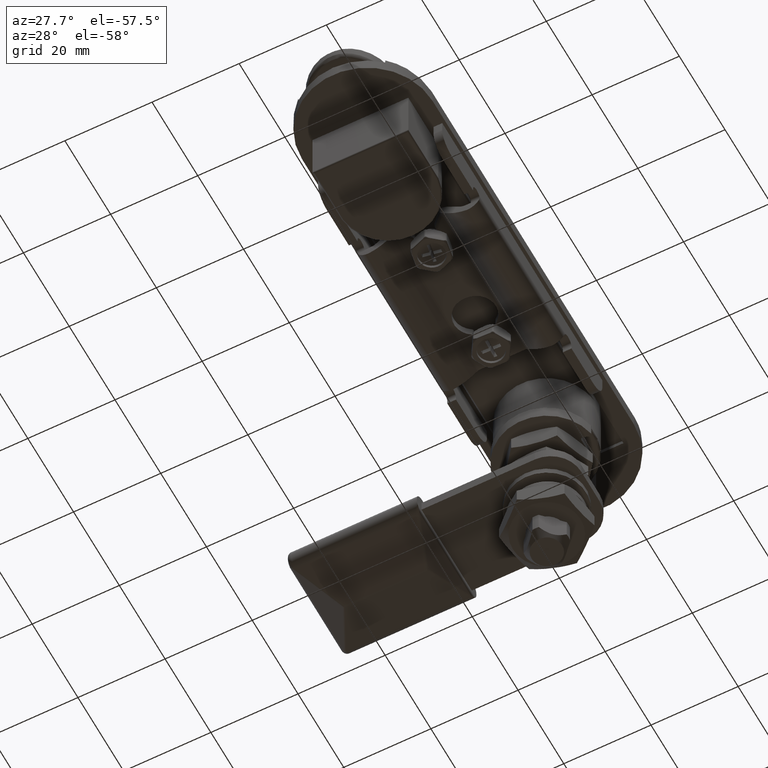
[diagram: clean part render]
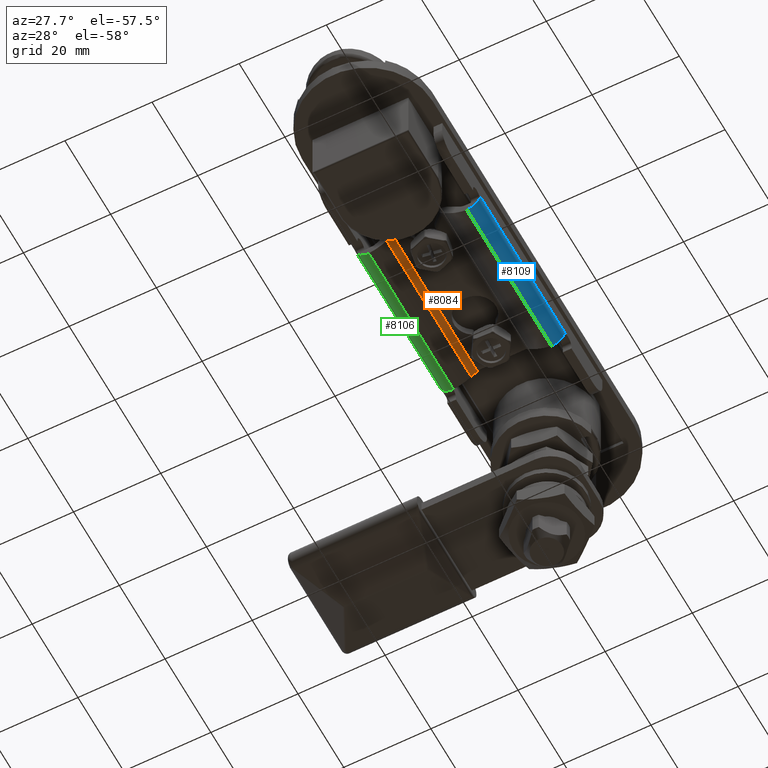
[diagram: same view with three faces highlighted in distinct colors, each labeled with its STEP entity id]
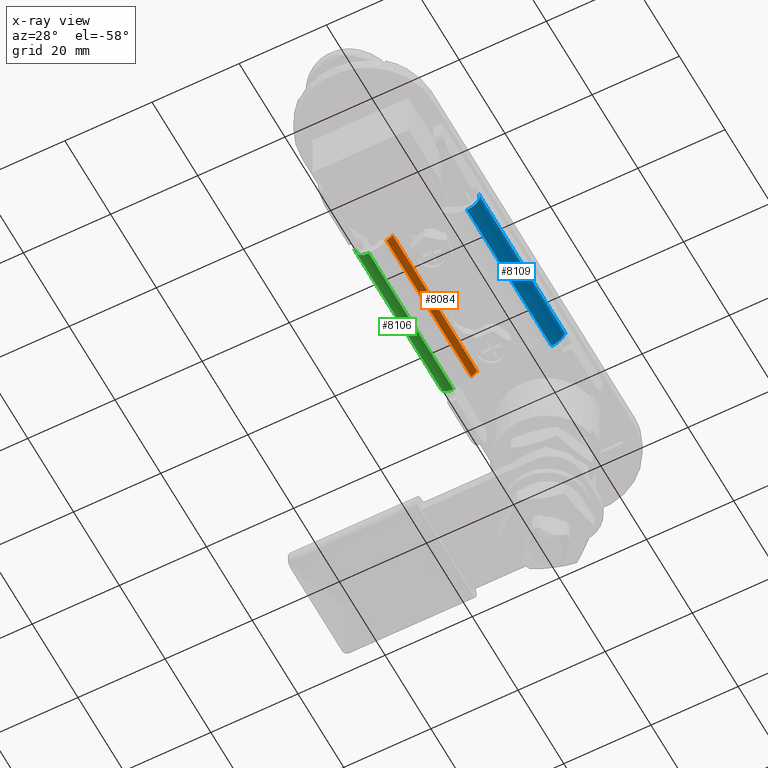
[diagram: x-ray of the same camera — body ghosted, the three highlighted faces saturated]
A machine part, auxiliary view with three faces highlighted in distinct colors.
The next image is the same camera in x-ray (body ghosted, the three faces saturated) — at least one of them is partly hidden behind the body in this view.
Their STEP definitions:

[orange] entity #8084 — the highlighted planar face has unit normal (0.6048, -0, -0.7963).
#307=B_SPLINE_CURVE_WITH_KNOTS('',3,(#13740,#13741,#13742,#13743,#13744,
#13745),.UNSPECIFIED.,.F.,.F.,(4,2,4),(0.0525554186925836,0.0561571522598591,
0.0569356578501314),.UNSPECIFIED.);
#783=LINE('',#13781,#1375);
#784=LINE('',#13785,#1376);
#785=LINE('',#13787,#1377);
#786=LINE('',#13788,#1378);
#1375=VECTOR('',#10557,36.9587656626786);
#1376=VECTOR('',#10562,1.75235138717755);
#1377=VECTOR('',#10563,37.);
#1378=VECTOR('',#10564,1.76574116136651);
#1728=PLANE('',#8823);
#2163=FACE_OUTER_BOUND('',#2691,.T.);
#2691=EDGE_LOOP('',(#6578,#6579,#6580,#6581,#6582));
#3783=VERTEX_POINT('',#13738);
#3784=VERTEX_POINT('',#13739);
#3790=VERTEX_POINT('',#13780);
#3791=VERTEX_POINT('',#13784);
#3792=VERTEX_POINT('',#13786);
#4768=EDGE_CURVE('',#3783,#3784,#307,.T.);
#4778=EDGE_CURVE('',#3784,#3790,#783,.T.);
#4780=EDGE_CURVE('',#3791,#3783,#784,.T.);
#4781=EDGE_CURVE('',#3792,#3791,#785,.T.);
#4782=EDGE_CURVE('',#3790,#3792,#786,.T.);
#6578=ORIENTED_EDGE('',*,*,#4768,.F.);
#6579=ORIENTED_EDGE('',*,*,#4780,.F.);
#6580=ORIENTED_EDGE('',*,*,#4781,.F.);
#6581=ORIENTED_EDGE('',*,*,#4782,.F.);
#6582=ORIENTED_EDGE('',*,*,#4778,.F.);
#8084=ADVANCED_FACE('',(#2163),#1728,.T.);
#8823=AXIS2_PLACEMENT_3D('',#13783,#10560,#10561);
#10557=DIRECTION('',(-1.,0.,0.));
#10560=DIRECTION('center_axis',(0.,-0.604843665026195,0.796344235163211));
#10561=DIRECTION('ref_axis',(0.,-0.796344235163211,-0.604843665026195));
#10562=DIRECTION('',(0.,-0.796344235163211,-0.604843665026195));
#10563=DIRECTION('',(1.,8.04644149250321E-17,6.11147660502249E-17));
#10564=DIRECTION('',(0.,0.796344235163211,0.604843665026195));
#13738=CARTESIAN_POINT('',(18.5,5.77879842857831,6.21175448493112));
#13739=CARTESIAN_POINT('',(18.4587656626786,5.76813555932597,6.2036557650139));
#13740=CARTESIAN_POINT('Ctrl Pts',(18.5,5.77879842857831,6.21175448493112));
#13741=CARTESIAN_POINT('Ctrl Pts',(18.4886562420649,5.77584627307822,6.20951224787639));
#13742=CARTESIAN_POINT('Ctrl Pts',(18.4773459949616,5.77291875636018,6.20728872460219));
#13743=CARTESIAN_POINT('Ctrl Pts',(18.4636388203637,5.76938856607966,6.20460745545597));
#13744=CARTESIAN_POINT('Ctrl Pts',(18.4612023544872,5.76876175481156,6.2041313763837));
#13745=CARTESIAN_POINT('Ctrl Pts',(18.4587656617459,5.76813555909279,6.20365576483679));
#13780=CARTESIAN_POINT('',(-18.5,5.76813555909279,6.20365576483679));
#13781=CARTESIAN_POINT('',(0.,5.76813555909279,6.20365576483679));
#13783=CARTESIAN_POINT('Origin',(0.,9.44983504602989,9.));
#13784=CARTESIAN_POINT('',(18.5,7.17427335373741,7.27165312036533));
#13785=CARTESIAN_POINT('',(18.5,5.5,6.));
#13786=CARTESIAN_POINT('',(-18.5,7.17427335373741,7.27165312036532));
#13787=CARTESIAN_POINT('',(-17.5,7.17427335373741,7.27165312036532));
#13788=CARTESIAN_POINT('',(-18.5,5.5,6.));

[blue] entity #8109 — the highlighted cylindrical surface (edge-blend (fillet) strip) has radius 3 mm, axis along (0, 1, 0).
#316=B_SPLINE_CURVE_WITH_KNOTS('',3,(#13947,#13948,#13949,#13950,#13951,
#13952,#13953,#13954),.UNSPECIFIED.,.F.,.F.,(4,2,2,4),(-0.229739998297129,
-0.171719825987874,-0.113699653678619,-0.0922557496648515),
 .UNSPECIFIED.);
#317=B_SPLINE_CURVE_WITH_KNOTS('',3,(#13957,#13958,#13959,#13960,#13961,
#13962,#13963,#13964),.UNSPECIFIED.,.F.,.F.,(4,2,2,4),(0.0922557496648514,
0.113699653678618,0.171719825987873,0.229739998297129),.UNSPECIFIED.);
#814=LINE('',#13879,#1406);
#831=LINE('',#13956,#1423);
#1406=VECTOR('',#10654,37.);
#1423=VECTOR('',#10701,38.2);
#2188=FACE_OUTER_BOUND('',#2716,.T.);
#2716=EDGE_LOOP('',(#6729,#6730,#6731,#6732,#6733,#6734));
#3184=CIRCLE('',#8836,3.);
#3192=CIRCLE('',#8859,3.);
#3804=VERTEX_POINT('',#13828);
#3805=VERTEX_POINT('',#13830);
#3816=VERTEX_POINT('',#13877);
#3822=VERTEX_POINT('',#13894);
#3836=VERTEX_POINT('',#13946);
#3837=VERTEX_POINT('',#13955);
#4801=EDGE_CURVE('',#3805,#3804,#3184,.T.);
#4824=EDGE_CURVE('',#3804,#3816,#814,.T.);
#4834=EDGE_CURVE('',#3816,#3822,#3192,.T.);
#4852=EDGE_CURVE('',#3822,#3836,#316,.T.);
#4853=EDGE_CURVE('',#3836,#3837,#831,.T.);
#4854=EDGE_CURVE('',#3837,#3805,#317,.T.);
#6729=ORIENTED_EDGE('',*,*,#4852,.T.);
#6730=ORIENTED_EDGE('',*,*,#4853,.T.);
#6731=ORIENTED_EDGE('',*,*,#4854,.T.);
#6732=ORIENTED_EDGE('',*,*,#4801,.T.);
#6733=ORIENTED_EDGE('',*,*,#4824,.T.);
#6734=ORIENTED_EDGE('',*,*,#4834,.T.);
#7776=CYLINDRICAL_SURFACE('',#8869,3.);
#8109=ADVANCED_FACE('',(#2188),#7776,.T.);
#8836=AXIS2_PLACEMENT_3D('',#13831,#10598,#10599);
#8859=AXIS2_PLACEMENT_3D('',#13896,#10669,#10670);
#8869=AXIS2_PLACEMENT_3D('',#13945,#10699,#10700);
#10598=DIRECTION('center_axis',(-1.,0.,1.2335811384724E-15));
#10599=DIRECTION('ref_axis',(0.,-0.707106781186547,0.707106781186548));
#10654=DIRECTION('',(-1.,0.,0.));
#10669=DIRECTION('center_axis',(1.,0.,1.2335811384724E-15));
#10670=DIRECTION('ref_axis',(0.,-0.707106781186547,0.707106781186548));
#10699=DIRECTION('center_axis',(-1.,0.,0.));
#10700=DIRECTION('ref_axis',(0.,-0.707106781186547,0.707106781186548));
#10701=DIRECTION('',(1.,0.,0.));
#13828=CARTESIAN_POINT('',(18.5,-11.25,9.));
#13830=CARTESIAN_POINT('',(18.5,-13.9995454169735,7.2));
#13831=CARTESIAN_POINT('Origin',(18.5,-11.25,6.));
#13877=CARTESIAN_POINT('',(-18.5,-11.25,9.));
#13879=CARTESIAN_POINT('',(17.5,-11.25,9.));
#13894=CARTESIAN_POINT('',(-18.5,-13.9995454169735,7.2));
#13896=CARTESIAN_POINT('Origin',(-18.5,-11.25,6.));
#13945=CARTESIAN_POINT('Origin',(17.5,-11.25,6.));
#13946=CARTESIAN_POINT('',(-19.1,-14.25,6.));
#13947=CARTESIAN_POINT('Ctrl Pts',(-18.5,-13.9995454169735,7.2));
#13948=CARTESIAN_POINT('Ctrl Pts',(-18.5,-14.0769056467192,7.02274544570564));
#13949=CARTESIAN_POINT('Ctrl Pts',(-18.5337753742866,-14.1404133917006,
6.82557989568249));
#13950=CARTESIAN_POINT('Ctrl Pts',(-18.6831110973467,-14.2214516535617,
6.4544740840904));
#13951=CARTESIAN_POINT('Ctrl Pts',(-18.7989403610948,-14.2399818575909,
6.28086113139824));
#13952=CARTESIAN_POINT('Ctrl Pts',(-18.9853727274258,-14.2489906403868,
6.09291602294071));
#13953=CARTESIAN_POINT('Ctrl Pts',(-19.040611384434,-14.25,6.04454146167446));
#13954=CARTESIAN_POINT('Ctrl Pts',(-19.1,-14.25,6.));
#13955=CARTESIAN_POINT('',(19.1,-14.25,6.));
#13956=CARTESIAN_POINT('',(17.5,-14.25,6.));
#13957=CARTESIAN_POINT('Ctrl Pts',(19.1,-14.25,6.));
#13958=CARTESIAN_POINT('Ctrl Pts',(19.0406113844341,-14.25,6.04454146167446));
#13959=CARTESIAN_POINT('Ctrl Pts',(18.9853727274258,-14.2489906403868,6.09291602294071));
#13960=CARTESIAN_POINT('Ctrl Pts',(18.7989403610949,-14.2399818575909,6.28086113139824));
#13961=CARTESIAN_POINT('Ctrl Pts',(18.6831110973467,-14.2214516535617,6.4544740840904));
#13962=CARTESIAN_POINT('Ctrl Pts',(18.5337753742866,-14.1404133917006,6.82557989568248));
#13963=CARTESIAN_POINT('Ctrl Pts',(18.5,-14.0769056467192,7.02274544570564));
#13964=CARTESIAN_POINT('Ctrl Pts',(18.5,-13.9995454169735,7.2));

[green] entity #8106 — the highlighted cylindrical surface (edge-blend (fillet) strip) has radius 3 mm, axis along (-0, -1, -0).
#314=B_SPLINE_CURVE_WITH_KNOTS('',3,(#13901,#13902,#13903,#13904,#13905,
#13906,#13907,#13908),.UNSPECIFIED.,.F.,.F.,(4,2,2,4),(0.271863680088599,
0.329883852397854,0.387904024707109,0.409347928720876),.UNSPECIFIED.);
#315=B_SPLINE_CURVE_WITH_KNOTS('',3,(#13911,#13912,#13913,#13914,#13915,
#13916,#13917,#13918),.UNSPECIFIED.,.F.,.F.,(4,2,2,4),(0.593859428050579,
0.615303332064346,0.673323504373601,0.731343676682856),.UNSPECIFIED.);
#821=LINE('',#13898,#1413);
#822=LINE('',#13910,#1414);
#1413=VECTOR('',#10673,37.);
#1414=VECTOR('',#10676,38.2);
#2185=FACE_OUTER_BOUND('',#2713,.T.);
#2713=EDGE_LOOP('',(#6706,#6707,#6708,#6709,#6710,#6711));
#3179=CIRCLE('',#8827,3.);
#3190=CIRCLE('',#8857,3.);
#3799=VERTEX_POINT('',#13802);
#3800=VERTEX_POINT('',#13804);
#3817=VERTEX_POINT('',#13881);
#3818=VERTEX_POINT('',#13883);
#3823=VERTEX_POINT('',#13900);
#3824=VERTEX_POINT('',#13909);
#4790=EDGE_CURVE('',#3800,#3799,#3179,.T.);
#4826=EDGE_CURVE('',#3818,#3817,#3190,.T.);
#4835=EDGE_CURVE('',#3817,#3800,#821,.T.);
#4836=EDGE_CURVE('',#3799,#3823,#314,.T.);
#4837=EDGE_CURVE('',#3823,#3824,#822,.T.);
#4838=EDGE_CURVE('',#3824,#3818,#315,.T.);
#6706=ORIENTED_EDGE('',*,*,#4836,.T.);
#6707=ORIENTED_EDGE('',*,*,#4837,.T.);
#6708=ORIENTED_EDGE('',*,*,#4838,.T.);
#6709=ORIENTED_EDGE('',*,*,#4826,.T.);
#6710=ORIENTED_EDGE('',*,*,#4835,.T.);
#6711=ORIENTED_EDGE('',*,*,#4790,.T.);
#7774=CYLINDRICAL_SURFACE('',#8861,3.);
#8106=ADVANCED_FACE('',(#2185),#7774,.T.);
#8827=AXIS2_PLACEMENT_3D('',#13805,#10576,#10577);
#8857=AXIS2_PLACEMENT_3D('',#13884,#10659,#10660);
#8861=AXIS2_PLACEMENT_3D('',#13899,#10674,#10675);
#10576=DIRECTION('center_axis',(-1.,0.,1.2335811384724E-15));
#10577=DIRECTION('ref_axis',(0.,0.707106781186548,0.707106781186547));
#10659=DIRECTION('center_axis',(1.,0.,1.2335811384724E-15));
#10660=DIRECTION('ref_axis',(0.,0.707106781186548,0.707106781186547));
#10673=DIRECTION('',(1.,1.26882631385732E-16,0.));
#10674=DIRECTION('center_axis',(1.,1.26882631385732E-16,0.));
#10675=DIRECTION('ref_axis',(0.,0.707106781186548,0.707106781186547));
#10676=DIRECTION('',(-1.,-1.26882631385732E-16,0.));
#13802=CARTESIAN_POINT('',(18.5,13.9995454169735,7.2));
#13804=CARTESIAN_POINT('',(18.5,11.25,9.));
#13805=CARTESIAN_POINT('Origin',(18.5,11.25,6.));
#13881=CARTESIAN_POINT('',(-18.5,11.25,9.));
#13883=CARTESIAN_POINT('',(-18.5,13.9995454169735,7.2));
#13884=CARTESIAN_POINT('Origin',(-18.5,11.25,6.));
#13898=CARTESIAN_POINT('',(-17.5,11.25,9.));
#13899=CARTESIAN_POINT('Origin',(-17.5,11.25,6.));
#13900=CARTESIAN_POINT('',(19.1,14.25,6.));
#13901=CARTESIAN_POINT('Ctrl Pts',(18.5,13.9995454169735,7.2));
#13902=CARTESIAN_POINT('Ctrl Pts',(18.5,14.0769056467192,7.02274544570564));
#13903=CARTESIAN_POINT('Ctrl Pts',(18.5337753742866,14.1404133917006,6.82557989568249));
#13904=CARTESIAN_POINT('Ctrl Pts',(18.6831110973467,14.2214516535617,6.4544740840904));
#13905=CARTESIAN_POINT('Ctrl Pts',(18.7989403610948,14.2399818575909,6.28086113139823));
#13906=CARTESIAN_POINT('Ctrl Pts',(18.9853727274258,14.2489906403868,6.09291602294071));
#13907=CARTESIAN_POINT('Ctrl Pts',(19.0406113844341,14.25,6.04454146167446));
#13908=CARTESIAN_POINT('Ctrl Pts',(19.1,14.25,6.));
#13909=CARTESIAN_POINT('',(-19.1,14.25,6.));
#13910=CARTESIAN_POINT('',(-17.5,14.25,6.));
#13911=CARTESIAN_POINT('Ctrl Pts',(-19.1,14.25,6.));
#13912=CARTESIAN_POINT('Ctrl Pts',(-19.040611384434,14.25,6.04454146167446));
#13913=CARTESIAN_POINT('Ctrl Pts',(-18.9853727274258,14.2489906403868,6.09291602294071));
#13914=CARTESIAN_POINT('Ctrl Pts',(-18.7989403610948,14.2399818575909,6.28086113139824));
#13915=CARTESIAN_POINT('Ctrl Pts',(-18.6831110973467,14.2214516535617,6.4544740840904));
#13916=CARTESIAN_POINT('Ctrl Pts',(-18.5337753742866,14.1404133917006,6.82557989568248));
#13917=CARTESIAN_POINT('Ctrl Pts',(-18.5,14.0769056467192,7.02274544570564));
#13918=CARTESIAN_POINT('Ctrl Pts',(-18.5,13.9995454169735,7.2));